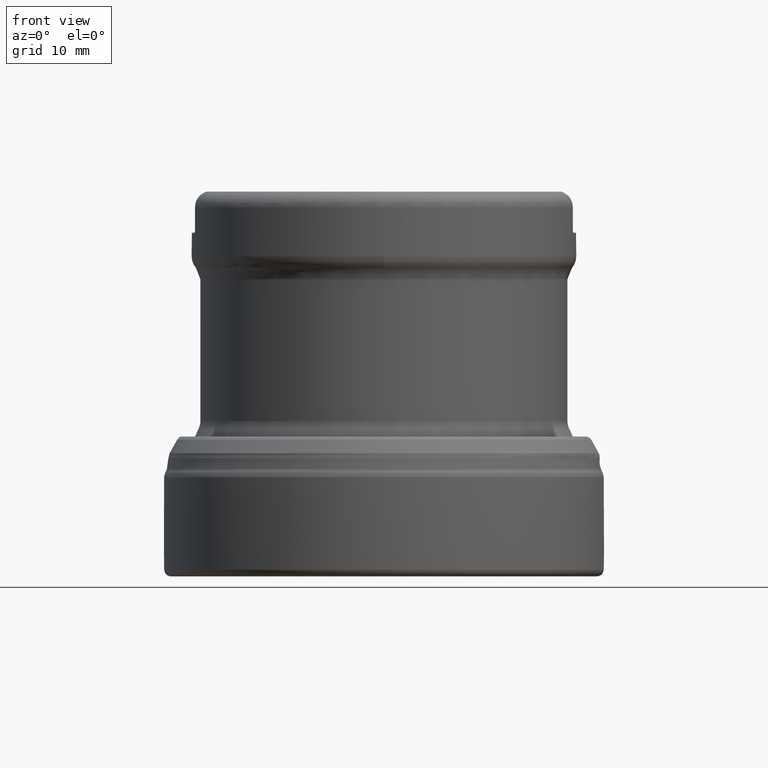
[diagram: clean part render]
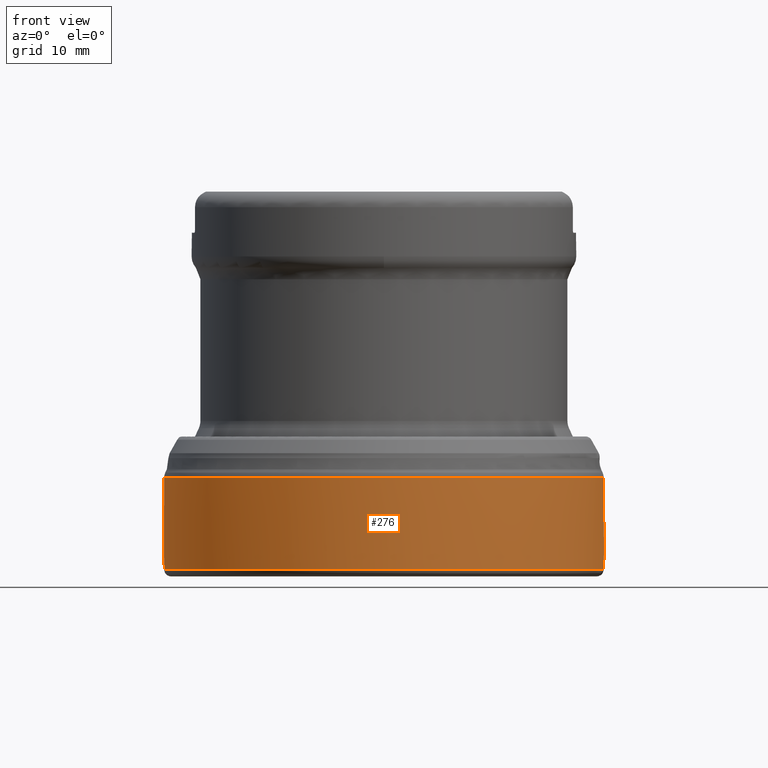
[diagram: same view with one face highlighted and labeled with its STEP entity id]
A machine part, front view. The second image highlights one B-rep face of the part: STEP entity #276.
In plain terms, the highlighted face is a SurfaceOfRevolution surface.
Its self-contained STEP definition (entity closure, byte-faithful):
#118=SURFACE_OF_REVOLUTION('',#1116,#139);
#139=AXIS1_PLACEMENT('',#2304,#1470);
#276=ADVANCED_FACE('',(#422,#423),#118,.F.);
#422=FACE_BOUND('',#542,.T.);
#423=FACE_BOUND('',#543,.T.);
#542=EDGE_LOOP('',(#770));
#543=EDGE_LOOP('',(#771));
#770=ORIENTED_EDGE('',*,*,#992,.T.);
#771=ORIENTED_EDGE('',*,*,#993,.F.);
#878=VERTEX_POINT('',#2275);
#879=VERTEX_POINT('',#2289);
#992=EDGE_CURVE('',#878,#878,#1053,.T.);
#993=EDGE_CURVE('',#879,#879,#1054,.T.);
#1053=CIRCLE('',#1228,25.4);
#1054=CIRCLE('',#1229,25.4000004116643);
#1116=B_SPLINE_CURVE_WITH_KNOTS('',3,(#2290,#2291,#2292,#2293,#2294,#2295,
#2296,#2297,#2298,#2299,#2300,#2301,#2302,#2303),.UNSPECIFIED.,.F.,.F.,
(4,1,1,1,1,1,1,1,1,1,1,4),(0.,0.228057409693129,0.368730032744676,0.509402655796224,
0.650075278847772,0.720411590373546,0.755579746136432,0.790747901899319,
0.861084213425093,0.931420524950867,0.966588680713754,1.),.UNSPECIFIED.);
#1228=AXIS2_PLACEMENT_3D('',#2274,#1465,#1466);
#1229=AXIS2_PLACEMENT_3D('',#2288,#1468,#1469);
#1465=DIRECTION('',(0.,0.,1.));
#1466=DIRECTION('',(1.,0.,0.));
#1468=DIRECTION('',(0.,0.,1.));
#1469=DIRECTION('',(1.,0.,0.));
#1470=DIRECTION('',(0.,0.,1.));
#2274=CARTESIAN_POINT('',(0.,0.,0.764693673894313));
#2275=CARTESIAN_POINT('',(25.4,0.,0.764693673894313));
#2288=CARTESIAN_POINT('',(0.,0.,11.4147294418847));
#2289=CARTESIAN_POINT('',(25.4000004116643,0.,11.4147294418847));
#2290=CARTESIAN_POINT('',(25.3987007437199,-0.256905684949998,11.4147302353744));
#2291=CARTESIAN_POINT('',(25.4116404927577,-0.472914949230267,10.6084539813909));
#2292=CARTESIAN_POINT('',(25.4218125336195,-0.822215878923074,9.30468263282237));
#2293=CARTESIAN_POINT('',(25.4121762962986,-1.30487727781125,7.50356164377744));
#2294=CARTESIAN_POINT('',(25.3907103910278,-1.70467241231358,6.01152018344194));
#2295=CARTESIAN_POINT('',(25.3628288043674,-2.03766089823695,4.76829183328647));
#2296=CARTESIAN_POINT('',(25.3383832536389,-2.2711243772618,3.89827184008115));
#2297=CARTESIAN_POINT('',(25.3230109290529,-2.40382607193751,3.40095045459286));
#2298=CARTESIAN_POINT('',(25.3071094843132,-2.52519405317546,2.9007462140348));
#2299=CARTESIAN_POINT('',(25.2863398497829,-2.65952062001817,2.27144973215368));
#2300=CARTESIAN_POINT('',(25.2648814839764,-2.76909686158005,1.63742804197711));
#2301=CARTESIAN_POINT('',(25.2478192204741,-2.84006365723772,1.13417012332406));
#2302=CARTESIAN_POINT('',(25.2391233131179,-2.87501003012062,0.885730269619396));
#2303=CARTESIAN_POINT('',(25.2348207117024,-2.89202760156893,0.764693673894313));
#2304=CARTESIAN_POINT('',(0.,0.,0.));